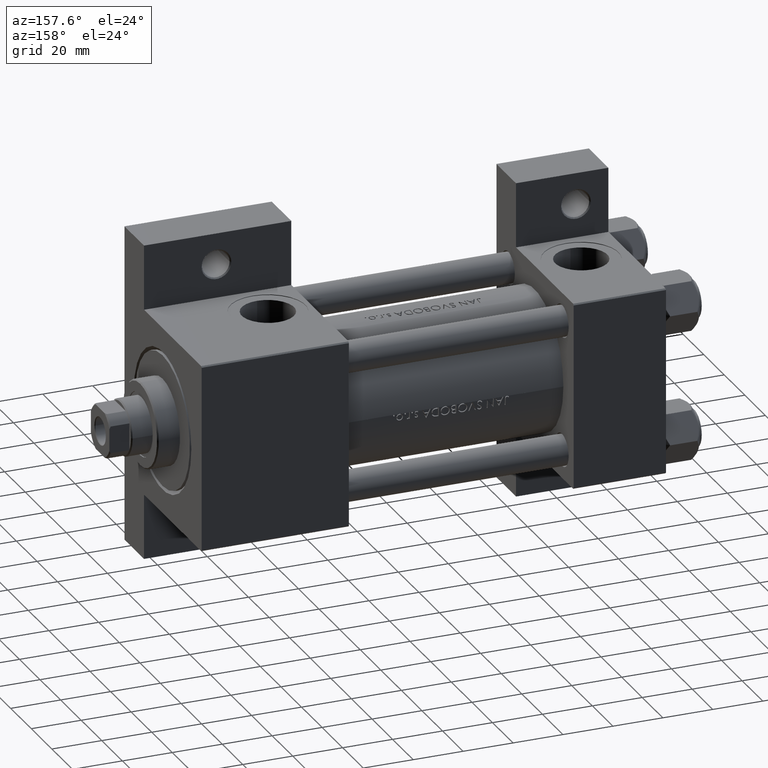
[diagram: clean part render]
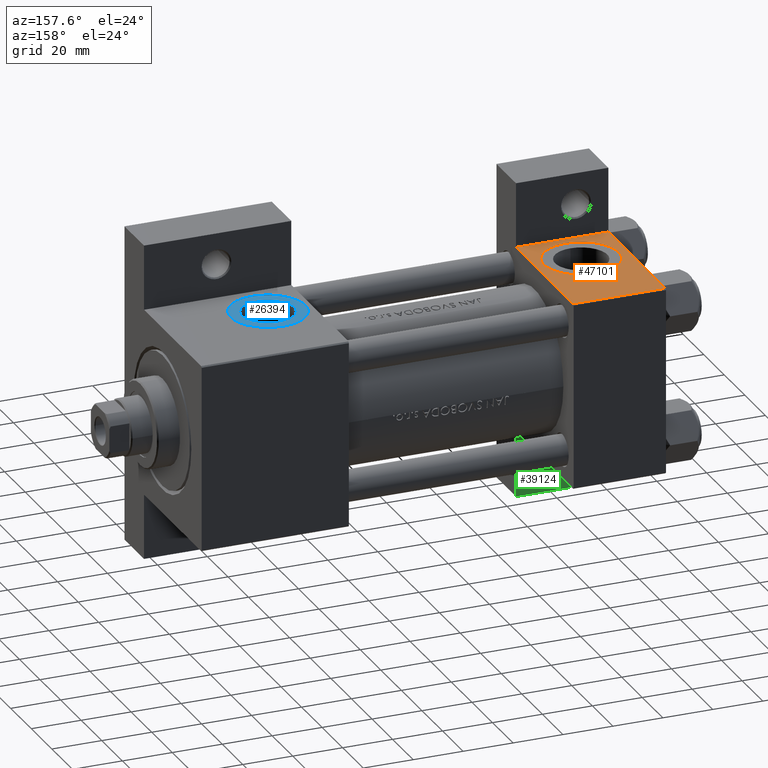
[diagram: same view with three faces highlighted in distinct colors, each labeled with its STEP entity id]
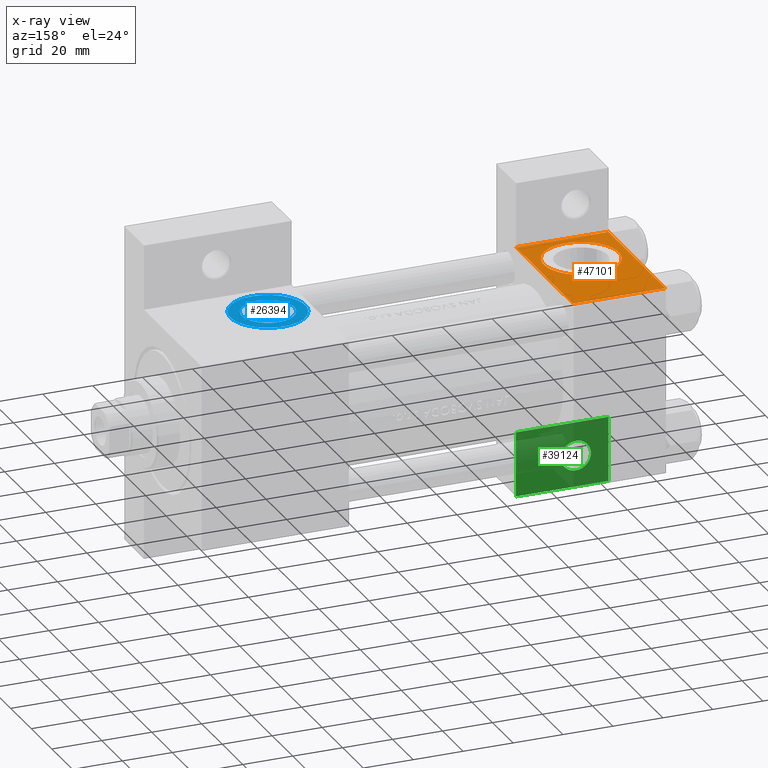
[diagram: x-ray of the same camera — body ghosted, the three highlighted faces saturated]
A machine part, auxiliary view with three faces highlighted in distinct colors.
The next image is the same camera in x-ray (body ghosted, the three faces saturated) — at least one of them is partly hidden behind the body in this view.
Their STEP definitions:

[orange] entity #47101 — the highlighted planar face has unit normal (0, 0, -1).
#1303 = DIRECTION ( 'NONE',  ( 0.000000000000000000, 9.251858538542971581E-17, -1.000000000000000000 ) ) ;
#2929 = CARTESIAN_POINT ( 'NONE',  ( 18.50000000000000000, -37.50000000000000711, -3.469446951953614978E-15 ) ) ;
#4257 = EDGE_CURVE ( 'NONE', #35631, #45966, #40407, .T. ) ;
#5182 = ORIENTED_EDGE ( 'NONE', *, *, #33930, .T. ) ;
#5431 = CARTESIAN_POINT ( 'NONE',  ( 18.50000000000000355, -37.50000000000000711, 14.99999999999999822 ) ) ;
#5440 = EDGE_CURVE ( 'NONE', #43650, #35631, #37376, .T. ) ;
#5520 = CIRCLE ( 'NONE', #13487, 15.00000000000000178 ) ;
#6477 = ORIENTED_EDGE ( 'NONE', *, *, #8236, .T. ) ;
#8236 = EDGE_CURVE ( 'NONE', #23458, #45966, #31892, .T. ) ;
#8772 = FACE_BOUND ( 'NONE', #35127, .T. ) ;
#10160 = ORIENTED_EDGE ( 'NONE', *, *, #20480, .F. ) ;
#10296 = LINE ( 'NONE', #48632, #10784 ) ;
#10784 = VECTOR ( 'NONE', #25454, 1000.000000000000000 ) ;
#11302 = VERTEX_POINT ( 'NONE', #19265 ) ;
#12944 = EDGE_LOOP ( 'NONE', ( #47925, #38805, #5182, #6477 ) ) ;
#13487 = AXIS2_PLACEMENT_3D ( 'NONE', #2929, #36282, #32779 ) ;
#16141 = VECTOR ( 'NONE', #18272, 1000.000000000000000 ) ;
#16239 = DIRECTION ( 'NONE',  ( 0.000000000000000000, -9.251858538542971581E-17, 1.000000000000000000 ) ) ;
#17738 = CARTESIAN_POINT ( 'NONE',  ( -7.145701223179004046E-16, -37.50000000000000711, -18.50000000000000355 ) ) ;
#18272 = DIRECTION ( 'NONE',  ( -1.000000000000000000, 0.000000000000000000, 0.000000000000000000 ) ) ;
#18996 = CARTESIAN_POINT ( 'NONE',  ( 37.00000000000000000, -37.50000000000000000, -18.50000000000000355 ) ) ;
#19265 = CARTESIAN_POINT ( 'NONE',  ( 18.50000000000000000, -37.50000000000000711, -15.00000000000000533 ) ) ;
#20480 = EDGE_CURVE ( 'NONE', #30203, #11302, #31659, .T. ) ;
#23458 = VERTEX_POINT ( 'NONE', #42372 ) ;
#24216 = VECTOR ( 'NONE', #1303, 1000.000000000000000 ) ;
#25454 = DIRECTION ( 'NONE',  ( -1.000000000000000000, 0.000000000000000000, 0.000000000000000000 ) ) ;
#25466 = CARTESIAN_POINT ( 'NONE',  ( -7.145701223179000102E-16, -37.50000000000001421, -18.49999999999999645 ) ) ;
#27694 = AXIS2_PLACEMENT_3D ( 'NONE', #36782, #49021, #48527 ) ;
#30203 = VERTEX_POINT ( 'NONE', #5431 ) ;
#31659 = CIRCLE ( 'NONE', #27694, 15.00000000000000178 ) ;
#31892 = LINE ( 'NONE', #47110, #24216 ) ;
#32779 = DIRECTION ( 'NONE',  ( 0.000000000000000000, 0.000000000000000000, -1.000000000000000000 ) ) ;
#33930 = EDGE_CURVE ( 'NONE', #43650, #23458, #10296, .T. ) ;
#34099 = AXIS2_PLACEMENT_3D ( 'NONE', #47343, #35120, #16239 ) ;
#35115 = CARTESIAN_POINT ( 'NONE',  ( 37.00000000000000000, -37.50000000000000711, 36.99999999999999289 ) ) ;
#35120 = DIRECTION ( 'NONE',  ( -0.000000000000000000, 1.000000000000000000, 9.251858538542971581E-17 ) ) ;
#35127 = EDGE_LOOP ( 'NONE', ( #35468, #10160 ) ) ;
#35468 = ORIENTED_EDGE ( 'NONE', *, *, #47438, .F. ) ;
#35631 = VERTEX_POINT ( 'NONE', #18996 ) ;
#36282 = DIRECTION ( 'NONE',  ( 0.000000000000000000, -1.000000000000000000, -8.673617379884036705E-17 ) ) ;
#36782 = CARTESIAN_POINT ( 'NONE',  ( 18.50000000000000000, -37.50000000000000711, -3.469446951953614978E-15 ) ) ;
#36871 = CARTESIAN_POINT ( 'NONE',  ( 37.00000000000000000, -37.50000000000000711, 37.49999999999999289 ) ) ;
#37376 = LINE ( 'NONE', #36871, #48797 ) ;
#38805 = ORIENTED_EDGE ( 'NONE', *, *, #5440, .F. ) ;
#40407 = LINE ( 'NONE', #25466, #16141 ) ;
#41110 = DIRECTION ( 'NONE',  ( 0.000000000000000000, 9.251858538542971581E-17, -1.000000000000000000 ) ) ;
#42372 = CARTESIAN_POINT ( 'NONE',  ( 0.000000000000000000, -37.50000000000000711, 36.99999999999999289 ) ) ;
#43650 = VERTEX_POINT ( 'NONE', #35115 ) ;
#45966 = VERTEX_POINT ( 'NONE', #17738 ) ;
#46346 = FACE_OUTER_BOUND ( 'NONE', #12944, .T. ) ;
#47091 = PLANE ( 'NONE',  #34099 ) ;
#47101 = ADVANCED_FACE ( 'NONE', ( #8772, #46346 ), #47091, .F. ) ;
#47110 = CARTESIAN_POINT ( 'NONE',  ( 0.000000000000000000, -37.50000000000000711, 37.49999999999999289 ) ) ;
#47343 = CARTESIAN_POINT ( 'NONE',  ( 37.00000000000000000, -37.50000000000000711, 37.49999999999999289 ) ) ;
#47438 = EDGE_CURVE ( 'NONE', #11302, #30203, #5520, .T. ) ;
#47925 = ORIENTED_EDGE ( 'NONE', *, *, #4257, .F. ) ;
#48527 = DIRECTION ( 'NONE',  ( 0.000000000000000000, 0.000000000000000000, -1.000000000000000000 ) ) ;
#48632 = CARTESIAN_POINT ( 'NONE',  ( 37.00000000000000000, -37.50000000000000711, 36.99999999999999289 ) ) ;
#48797 = VECTOR ( 'NONE', #41110, 1000.000000000000000 ) ;
#49021 = DIRECTION ( 'NONE',  ( 0.000000000000000000, -1.000000000000000000, -8.673617379884036705E-17 ) ) ;

[blue] entity #26394 — the highlighted planar face has unit normal (0, -0, 1).
#839 = EDGE_LOOP ( 'NONE', ( #48618, #41479 ) ) ;
#2889 = AXIS2_PLACEMENT_3D ( 'NONE', #43267, #39996, #16888 ) ;
#3850 = CIRCLE ( 'NONE', #6229, 10.47999999999998622 ) ;
#6229 = AXIS2_PLACEMENT_3D ( 'NONE', #11572, #33944, #37437 ) ;
#7440 = CARTESIAN_POINT ( 'NONE',  ( 144.0000000000000284, -37.29999999999999716, -10.47999999999998266 ) ) ;
#9408 = DIRECTION ( 'NONE',  ( 0.000000000000000000, -1.000000000000000000, -8.673617379884036705E-17 ) ) ;
#11572 = CARTESIAN_POINT ( 'NONE',  ( 144.0000000000000284, -37.29999999999999716, 3.486794186713383443E-15 ) ) ;
#11573 = CARTESIAN_POINT ( 'NONE',  ( 144.0000000000000284, -37.29999999999999716, 10.47999999999998977 ) ) ;
#11687 = ORIENTED_EDGE ( 'NONE', *, *, #13285, .T. ) ;
#13285 = EDGE_CURVE ( 'NONE', #36211, #27012, #22806, .T. ) ;
#15416 = AXIS2_PLACEMENT_3D ( 'NONE', #43107, #15996, #19472 ) ;
#15996 = DIRECTION ( 'NONE',  ( 0.000000000000000000, -1.000000000000000000, -8.673617379884036705E-17 ) ) ;
#16240 = FACE_BOUND ( 'NONE', #839, .T. ) ;
#16888 = DIRECTION ( 'NONE',  ( 0.000000000000000000, 0.000000000000000000, -1.000000000000000000 ) ) ;
#17365 = CARTESIAN_POINT ( 'NONE',  ( 144.0000000000000284, -37.29999999999999716, 3.486794186713383443E-15 ) ) ;
#17367 = CARTESIAN_POINT ( 'NONE',  ( 144.0000000000000284, -37.29999999999999716, 3.486794186713383443E-15 ) ) ;
#19051 = ORIENTED_EDGE ( 'NONE', *, *, #37734, .T. ) ;
#19472 = DIRECTION ( 'NONE',  ( 0.000000000000000000, 8.673617379884036705E-17, -1.000000000000000000 ) ) ;
#20354 = DIRECTION ( 'NONE',  ( 0.000000000000000000, 0.000000000000000000, -1.000000000000000000 ) ) ;
#22806 = CIRCLE ( 'NONE', #2889, 15.00000000000002487 ) ;
#25047 = DIRECTION ( 'NONE',  ( 0.000000000000000000, -1.000000000000000000, -8.673617379884036705E-17 ) ) ;
#26394 = ADVANCED_FACE ( 'NONE', ( #16240, #34878 ), #42610, .T. ) ;
#27012 = VERTEX_POINT ( 'NONE', #27545 ) ;
#27270 = VERTEX_POINT ( 'NONE', #7440 ) ;
#27499 = EDGE_CURVE ( 'NONE', #27270, #32511, #34493, .T. ) ;
#27545 = CARTESIAN_POINT ( 'NONE',  ( 144.0000000000000284, -37.29999999999999716, -15.00000000000002132 ) ) ;
#30741 = CIRCLE ( 'NONE', #46707, 15.00000000000002487 ) ;
#31285 = AXIS2_PLACEMENT_3D ( 'NONE', #17365, #25047, #20354 ) ;
#32511 = VERTEX_POINT ( 'NONE', #11573 ) ;
#33944 = DIRECTION ( 'NONE',  ( 0.000000000000000000, -1.000000000000000000, -8.673617379884036705E-17 ) ) ;
#34493 = CIRCLE ( 'NONE', #31285, 10.47999999999998622 ) ;
#34878 = FACE_OUTER_BOUND ( 'NONE', #41710, .T. ) ;
#36009 = DIRECTION ( 'NONE',  ( 0.000000000000000000, 0.000000000000000000, -1.000000000000000000 ) ) ;
#36211 = VERTEX_POINT ( 'NONE', #41147 ) ;
#37437 = DIRECTION ( 'NONE',  ( 0.000000000000000000, 0.000000000000000000, -1.000000000000000000 ) ) ;
#37734 = EDGE_CURVE ( 'NONE', #27012, #36211, #30741, .T. ) ;
#39996 = DIRECTION ( 'NONE',  ( 0.000000000000000000, -1.000000000000000000, -8.673617379884036705E-17 ) ) ;
#40588 = EDGE_CURVE ( 'NONE', #32511, #27270, #3850, .T. ) ;
#41147 = CARTESIAN_POINT ( 'NONE',  ( 144.0000000000000284, -37.29999999999999716, 15.00000000000002842 ) ) ;
#41479 = ORIENTED_EDGE ( 'NONE', *, *, #40588, .F. ) ;
#41710 = EDGE_LOOP ( 'NONE', ( #19051, #11687 ) ) ;
#42610 = PLANE ( 'NONE',  #15416 ) ;
#43107 = CARTESIAN_POINT ( 'NONE',  ( 144.0000000000000284, -37.29999999999999716, 3.486794186713383443E-15 ) ) ;
#43267 = CARTESIAN_POINT ( 'NONE',  ( 144.0000000000000284, -37.29999999999999716, 3.486794186713383443E-15 ) ) ;
#46707 = AXIS2_PLACEMENT_3D ( 'NONE', #17367, #9408, #36009 ) ;
#48618 = ORIENTED_EDGE ( 'NONE', *, *, #27499, .F. ) ;

[green] entity #39124 — the highlighted planar face has unit normal (0, -1, 0).
#268 = ORIENTED_EDGE ( 'NONE', *, *, #13573, .T. ) ;
#578 = EDGE_CURVE ( 'NONE', #20344, #24571, #16241, .T. ) ;
#1537 = DIRECTION ( 'NONE',  ( 1.000000000000000000, -3.750753461571474945E-16, 0.000000000000000000 ) ) ;
#2029 = CARTESIAN_POINT ( 'NONE',  ( 1.595073532467135757E-14, 63.50000000000001421, -18.50000000000000355 ) ) ;
#2279 = ORIENTED_EDGE ( 'NONE', *, *, #8301, .T. ) ;
#3237 = LINE ( 'NONE', #26121, #14612 ) ;
#4314 = CARTESIAN_POINT ( 'NONE',  ( 12.99999999999999822, 50.99999999999999289, -18.50000000000000000 ) ) ;
#4644 = CARTESIAN_POINT ( 'NONE',  ( 37.00000000000001421, 63.50000000000001421, -18.50000000000000355 ) ) ;
#5382 = AXIS2_PLACEMENT_3D ( 'NONE', #39699, #24273, #28245 ) ;
#5444 = CARTESIAN_POINT ( 'NONE',  ( 12.99999999999999822, 50.99999999999999289, -18.50000000000000000 ) ) ;
#5671 = EDGE_CURVE ( 'NONE', #34294, #26718, #3237, .T. ) ;
#5692 = ORIENTED_EDGE ( 'NONE', *, *, #578, .T. ) ;
#5779 = LINE ( 'NONE', #2029, #42524 ) ;
#8190 = EDGE_CURVE ( 'NONE', #30198, #15339, #30556, .T. ) ;
#8301 = EDGE_CURVE ( 'NONE', #26718, #20344, #5779, .T. ) ;
#8691 = DIRECTION ( 'NONE',  ( 0.000000000000000000, 0.000000000000000000, -1.000000000000000000 ) ) ;
#8947 = CARTESIAN_POINT ( 'NONE',  ( 1.595073532467135441E-14, 63.50000000000000000, -18.50000000000000355 ) ) ;
#9529 = ORIENTED_EDGE ( 'NONE', *, *, #5671, .T. ) ;
#9592 = FACE_OUTER_BOUND ( 'NONE', #15616, .T. ) ;
#12034 = DIRECTION ( 'NONE',  ( -1.000000000000000000, 0.000000000000000000, 0.000000000000000000 ) ) ;
#12693 = CARTESIAN_POINT ( 'NONE',  ( 7.000499999999892253, 50.99999999999999289, -18.50000000000000000 ) ) ;
#13414 = ORIENTED_EDGE ( 'NONE', *, *, #31970, .T. ) ;
#13573 = EDGE_CURVE ( 'NONE', #24571, #34294, #30996, .T. ) ;
#14612 = VECTOR ( 'NONE', #14703, 1000.000000000000000 ) ;
#14703 = DIRECTION ( 'NONE',  ( -1.000000000000000000, 0.000000000000000000, 0.000000000000000000 ) ) ;
#15339 = VERTEX_POINT ( 'NONE', #12693 ) ;
#15616 = EDGE_LOOP ( 'NONE', ( #2279, #5692, #268, #9529 ) ) ;
#16241 = LINE ( 'NONE', #28153, #22526 ) ;
#17888 = CIRCLE ( 'NONE', #26612, 5.999500000000105082 ) ;
#19493 = DIRECTION ( 'NONE',  ( 0.000000000000000000, 0.000000000000000000, -1.000000000000000000 ) ) ;
#20344 = VERTEX_POINT ( 'NONE', #42626 ) ;
#22526 = VECTOR ( 'NONE', #1537, 1000.000000000000000 ) ;
#22726 = EDGE_LOOP ( 'NONE', ( #33922, #13414 ) ) ;
#24273 = DIRECTION ( 'NONE',  ( 0.000000000000000000, 0.000000000000000000, -1.000000000000000000 ) ) ;
#24571 = VERTEX_POINT ( 'NONE', #29888 ) ;
#26121 = CARTESIAN_POINT ( 'NONE',  ( 1.595073532467135441E-14, 63.50000000000000000, -18.50000000000000355 ) ) ;
#26612 = AXIS2_PLACEMENT_3D ( 'NONE', #5444, #8691, #47504 ) ;
#26718 = VERTEX_POINT ( 'NONE', #8947 ) ;
#28153 = CARTESIAN_POINT ( 'NONE',  ( 8.470280871287256020E-15, 37.50000000000002842, -18.49999999999999645 ) ) ;
#28245 = DIRECTION ( 'NONE',  ( -1.000000000000000000, 0.000000000000000000, -0.000000000000000000 ) ) ;
#29888 = CARTESIAN_POINT ( 'NONE',  ( 37.00000000000000711, 37.50000000000000711, -18.50000000000000355 ) ) ;
#29953 = VECTOR ( 'NONE', #45471, 1000.000000000000000 ) ;
#30198 = VERTEX_POINT ( 'NONE', #39503 ) ;
#30556 = CIRCLE ( 'NONE', #32155, 5.999500000000105082 ) ;
#30996 = LINE ( 'NONE', #4644, #29953 ) ;
#31970 = EDGE_CURVE ( 'NONE', #15339, #30198, #17888, .T. ) ;
#32155 = AXIS2_PLACEMENT_3D ( 'NONE', #4314, #19493, #12034 ) ;
#32371 = DIRECTION ( 'NONE',  ( -2.877097866686192789E-16, -1.000000000000000000, 0.000000000000000000 ) ) ;
#32692 = PLANE ( 'NONE',  #5382 ) ;
#33922 = ORIENTED_EDGE ( 'NONE', *, *, #8190, .T. ) ;
#34294 = VERTEX_POINT ( 'NONE', #47042 ) ;
#39124 = ADVANCED_FACE ( 'NONE', ( #41101, #9592 ), #32692, .F. ) ;
#39503 = CARTESIAN_POINT ( 'NONE',  ( 18.99950000000010419, 50.99999999999999289, -18.50000000000000000 ) ) ;
#39699 = CARTESIAN_POINT ( 'NONE',  ( 0.000000000000000000, 0.000000000000000000, -18.50000000000000000 ) ) ;
#41101 = FACE_BOUND ( 'NONE', #22726, .T. ) ;
#42524 = VECTOR ( 'NONE', #32371, 1000.000000000000000 ) ;
#42626 = CARTESIAN_POINT ( 'NONE',  ( 0.000000000000000000, 37.49999999999999289, -18.49999999999999645 ) ) ;
#45471 = DIRECTION ( 'NONE',  ( 2.668805347656626678E-16, 1.000000000000000000, 0.000000000000000000 ) ) ;
#47042 = CARTESIAN_POINT ( 'NONE',  ( 37.00000000000001421, 63.50000000000000000, -18.50000000000000355 ) ) ;
#47504 = DIRECTION ( 'NONE',  ( -1.000000000000000000, 0.000000000000000000, 0.000000000000000000 ) ) ;